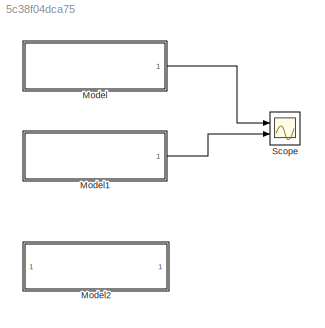
MODEL slx_5c38f04dca75
KIND model
CONFIG AbsTol = auto
CONFIG EnableMultiTasking = off
CONFIG FixedStep = auto
CONFIG MaxStep = auto
CONFIG MinStep = auto
CONFIG RelTol = 1e-3
CONFIG SampleTimeConstraint = Unconstrained
CONFIG SolverName = VariableStepAuto
CONFIG StartTime = 0.0
CONFIG StopTime = 00000000.1
BLOCK [ModelReference] Model
  ModelNameDialog = vridkrets.slx
  ModelReferenceVersion = 1.6
  Ports = [0, 1]
BLOCK [ModelReference] Model1
  ModelNameDialog = Hall_Effect.slx
  ModelReferenceVersion = 1.12
  Ports = [0, 1]
BLOCK [ModelReference] Model2
  ModelNameDialog = Amplifier_Temperature.slx
  ModelReferenceVersion = 1.11
  Ports = []
BLOCK [Scope] Scope
  Floating = off
  NumInputPorts = 2
  Ports = [2]
  ScopeSpecificationString = Simulink.scopes.TimeScopeBlockCfg('CurrentConfiguration', extmgr.ConfigurationSet(extmgr.Configuration('Core','General UI',true),extmgr.Configuration('Core','Source UI',true),extmgr.Configuration('Sources','WiredSimulink',true),extmgr.Configuration('Visuals','Time Domain',true,'SerializedDisplays',{struct('MinYLimReal','-12.42234','MaxYLimReal','12.41218','YLabelReal','','MinYLimMag','0.00000','Ma...<+1331ch>
LINE Model1:1 -> Scope:2
LINE Model:1 -> Scope:1
